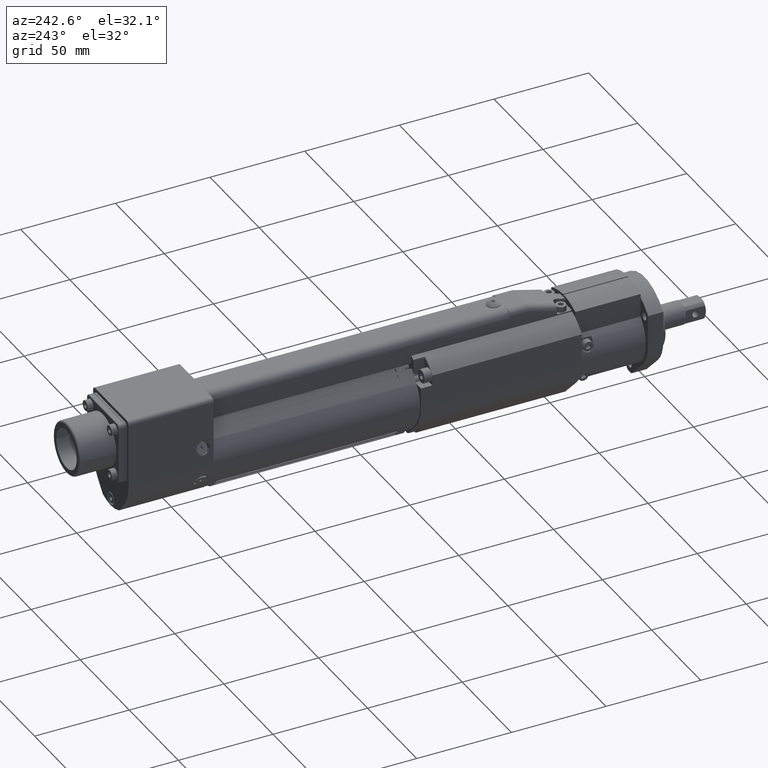
[diagram: clean part render]
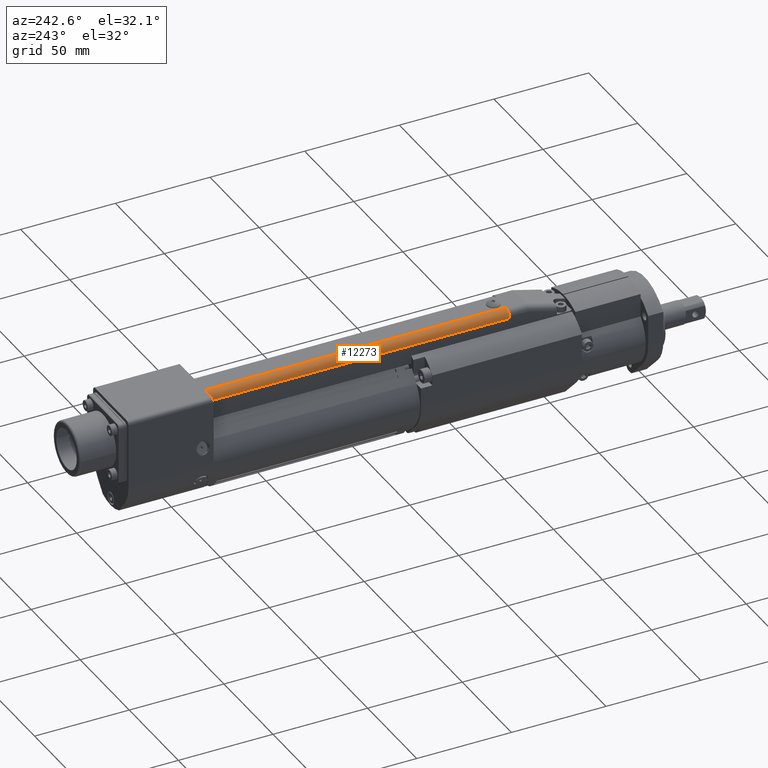
[diagram: same view with one face highlighted and labeled with its STEP entity id]
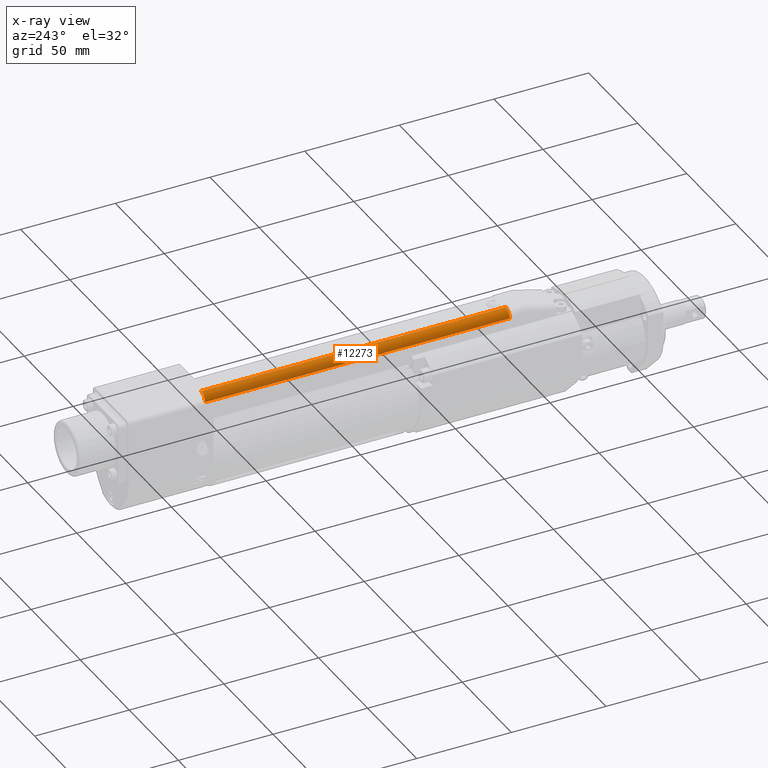
[diagram: x-ray of the same camera — body ghosted, the highlighted face saturated]
A machine part, auxiliary view. The second image highlights one B-rep face of the part: STEP entity #12273.
The next image is the same camera in x-ray: the body ghosted, the highlighted face saturated — about 0% of this face is hidden behind the body in this view.
In plain terms, the highlighted cylindrical surface (edge-blend (fillet) strip) has radius 4 mm, axis along (0, 1, -0).
Its self-contained STEP definition (entity closure, byte-faithful):
#205=CYLINDRICAL_SURFACE('',#13104,4.);
#644=FACE_OUTER_BOUND('',#1363,.T.);
#1363=EDGE_LOOP('',(#8101,#8102,#8103,#8104));
#2084=CIRCLE('',#12936,4.);
#2161=CIRCLE('',#13105,4.);
#2739=LINE('',#18968,#3783);
#2758=LINE('',#19007,#3802);
#3783=VECTOR('',#14690,10.);
#3802=VECTOR('',#14727,10.);
#4751=VERTEX_POINT('',#17844);
#4752=VERTEX_POINT('',#17846);
#4909=VERTEX_POINT('',#18966);
#4920=VERTEX_POINT('',#19005);
#5876=EDGE_CURVE('',#4751,#4752,#2084,.T.);
#6107=EDGE_CURVE('',#4909,#4751,#2739,.T.);
#6127=EDGE_CURVE('',#4920,#4752,#2758,.T.);
#6128=EDGE_CURVE('',#4920,#4909,#2161,.T.);
#8101=ORIENTED_EDGE('',*,*,#6128,.F.);
#8102=ORIENTED_EDGE('',*,*,#6127,.T.);
#8103=ORIENTED_EDGE('',*,*,#5876,.F.);
#8104=ORIENTED_EDGE('',*,*,#6107,.F.);
#12273=ADVANCED_FACE('',(#644),#205,.T.);
#12936=AXIS2_PLACEMENT_3D('',#17847,#14271,#14272);
#13104=AXIS2_PLACEMENT_3D('',#19008,#14728,#14729);
#13105=AXIS2_PLACEMENT_3D('',#19009,#14730,#14731);
#14271=DIRECTION('center_axis',(4.90546703537902E-16,1.,-2.50110778304385E-16));
#14272=DIRECTION('ref_axis',(-1.,8.3266726846888E-16,-1.42786419031425E-16));
#14690=DIRECTION('',(8.3266726846888E-16,1.,-2.22044604925032E-16));
#14727=DIRECTION('',(8.3266726846888E-16,1.,-2.22044604925032E-16));
#14728=DIRECTION('center_axis',(8.3266726846888E-16,1.,-2.22044604925032E-16));
#14729=DIRECTION('ref_axis',(-1.,8.3266726846888E-16,-1.42786419031425E-16));
#14730=DIRECTION('center_axis',(-8.3266726846888E-16,-1.,2.22044604925031E-16));
#14731=DIRECTION('ref_axis',(-1.,8.3266726846888E-16,-1.42786419031425E-16));
#17844=CARTESIAN_POINT('',(-8.99999999999985,237.,29.));
#17846=CARTESIAN_POINT('',(-4.99999999999985,237.,33.));
#17847=CARTESIAN_POINT('Origin',(-4.99999999999985,237.,29.));
#18966=CARTESIAN_POINT('',(-8.99999999999998,76.,29.));
#18968=CARTESIAN_POINT('',(-8.99999999999998,76.,29.));
#19005=CARTESIAN_POINT('',(-4.99999999999998,76.,33.));
#19007=CARTESIAN_POINT('',(-4.99999999999998,76.,33.));
#19008=CARTESIAN_POINT('Origin',(-4.99999999999998,76.,29.));
#19009=CARTESIAN_POINT('Origin',(-4.99999999999998,76.,29.));